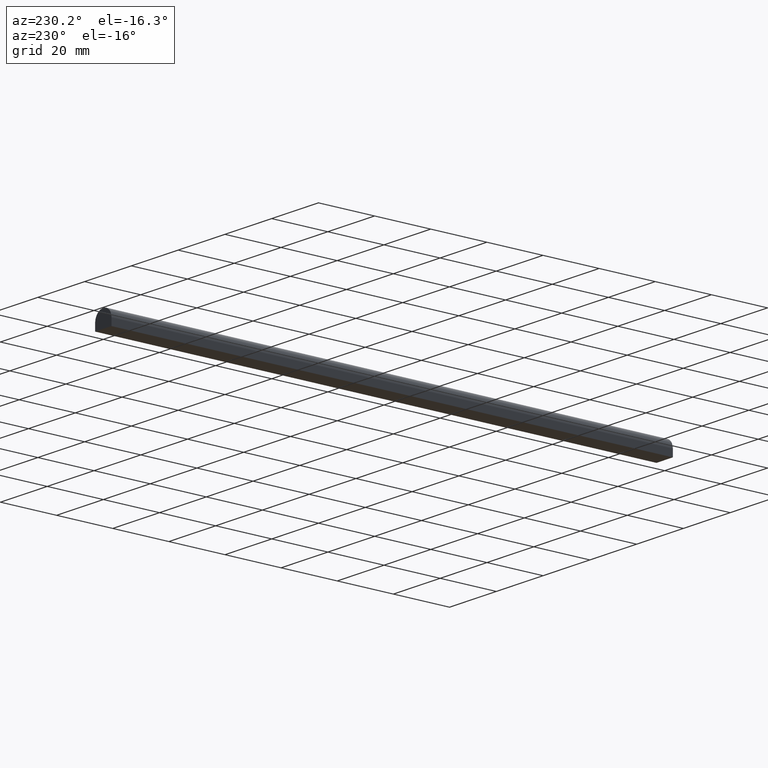
[diagram: clean part render]
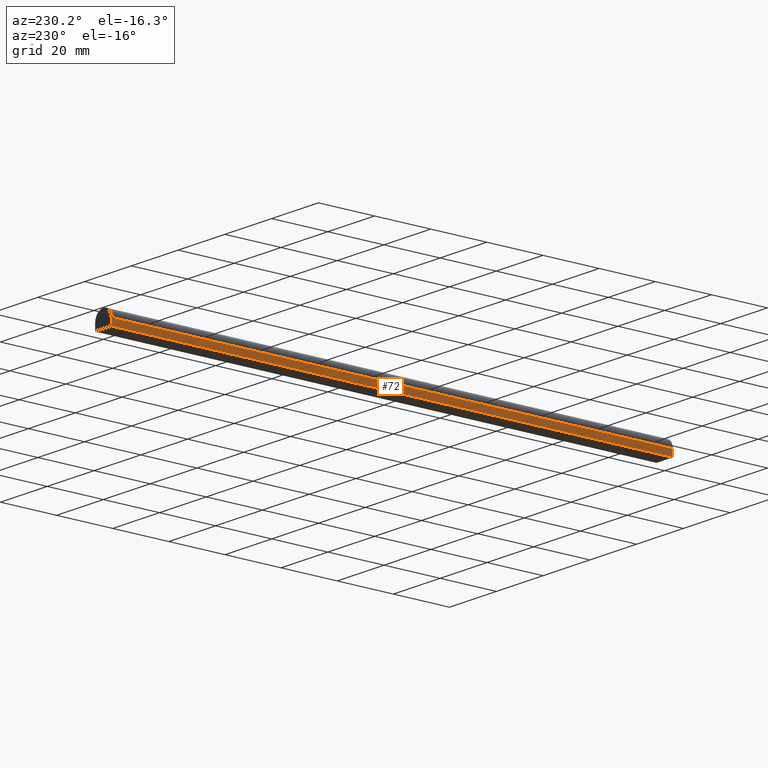
[diagram: same view with one face highlighted and labeled with its STEP entity id]
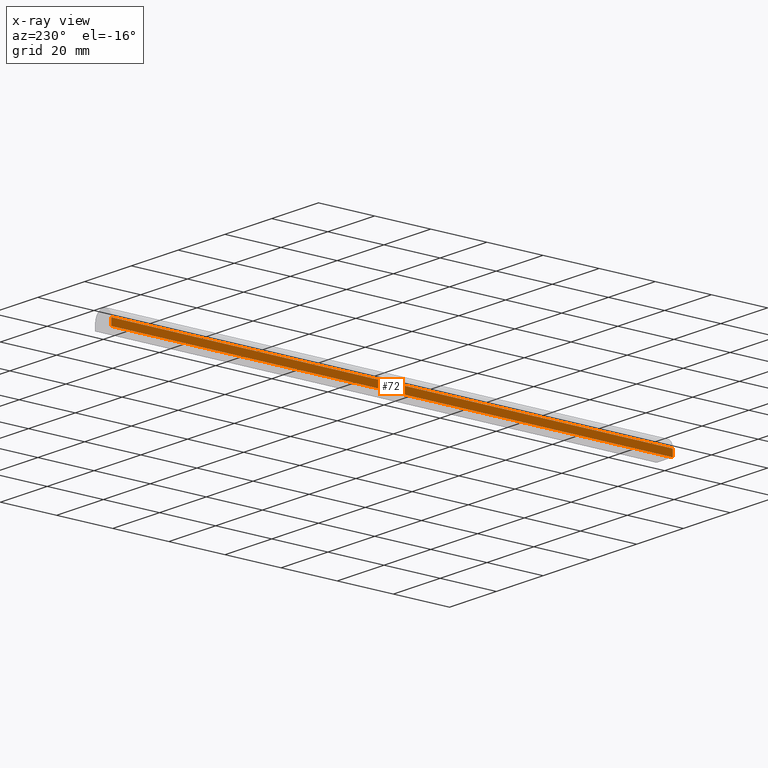
[diagram: x-ray of the same camera — body ghosted, the highlighted face saturated]
A machine part, auxiliary view. The second image highlights one B-rep face of the part: STEP entity #72.
The next image is the same camera in x-ray: the body ghosted, the highlighted face saturated — about 0% of this face is hidden behind the body in this view.
In plain terms, the highlighted planar face has unit normal (-1, 0, 0).
Its self-contained STEP definition (entity closure, byte-faithful):
#8 = PLANE ( 'NONE',  #75 ) ;
#10 = VERTEX_POINT ( 'NONE', #132 ) ;
#17 = DIRECTION ( 'NONE',  ( -1.000000000000000000, 0.0000000000000000000, 0.0000000000000000000 ) ) ;
#18 = ORIENTED_EDGE ( 'NONE', *, *, #174, .T. ) ;
#22 = DIRECTION ( 'NONE',  ( 0.0000000000000000000, -1.000000000000000000, 0.0000000000000000000 ) ) ;
#23 = VECTOR ( 'NONE', #171, 1000.000000000000000 ) ;
#30 = ORIENTED_EDGE ( 'NONE', *, *, #214, .F. ) ;
#34 = DIRECTION ( 'NONE',  ( -0.0000000000000000000, -0.0000000000000000000, -1.000000000000000000 ) ) ;
#37 = VERTEX_POINT ( 'NONE', #40 ) ;
#40 = CARTESIAN_POINT ( 'NONE',  ( -3.500000000000000000, 0.0000000000000000000, -3.000000000000000000 ) ) ;
#45 = DIRECTION ( 'NONE',  ( 0.0000000000000000000, 0.0000000000000000000, 1.000000000000000000 ) ) ;
#51 = VECTOR ( 'NONE', #22, 1000.000000000000000 ) ;
#52 = VECTOR ( 'NONE', #146, 1000.000000000000000 ) ;
#57 = CARTESIAN_POINT ( 'NONE',  ( -3.500000000000000000, 1000.000000000000000, -0.5000000000000000000 ) ) ;
#58 = LINE ( 'NONE', #166, #144 ) ;
#72 = ADVANCED_FACE ( 'NONE', ( #164 ), #8, .T. ) ;
#74 = EDGE_LOOP ( 'NONE', ( #30, #210, #18, #111 ) ) ;
#75 = AXIS2_PLACEMENT_3D ( 'NONE', #57, #17, #45 ) ;
#76 = CARTESIAN_POINT ( 'NONE',  ( -3.500000000000000000, 200.0000000000000000, -0.5000000000000000000 ) ) ;
#92 = EDGE_CURVE ( 'NONE', #117, #184, #217, .T. ) ;
#95 = CARTESIAN_POINT ( 'NONE',  ( -3.500000000000000000, 0.0000000000000000000, -0.5000000000000000000 ) ) ;
#105 = CARTESIAN_POINT ( 'NONE',  ( -3.500000000000000000, 1000.000000000000000, -0.5000000000000000000 ) ) ;
#111 = ORIENTED_EDGE ( 'NONE', *, *, #150, .T. ) ;
#117 = VERTEX_POINT ( 'NONE', #76 ) ;
#132 = CARTESIAN_POINT ( 'NONE',  ( -3.500000000000000000, 200.0000000000000000, -3.000000000000000000 ) ) ;
#144 = VECTOR ( 'NONE', #34, 1000.000000000000000 ) ;
#146 = DIRECTION ( 'NONE',  ( -0.0000000000000000000, -0.0000000000000000000, -1.000000000000000000 ) ) ;
#150 = EDGE_CURVE ( 'NONE', #10, #37, #190, .T. ) ;
#164 = FACE_OUTER_BOUND ( 'NONE', #74, .T. ) ;
#166 = CARTESIAN_POINT ( 'NONE',  ( -3.500000000000000000, 200.0000000000000000, 0.0000000000000000000 ) ) ;
#171 = DIRECTION ( 'NONE',  ( 0.0000000000000000000, -1.000000000000000000, 0.0000000000000000000 ) ) ;
#174 = EDGE_CURVE ( 'NONE', #117, #10, #58, .T. ) ;
#176 = CARTESIAN_POINT ( 'NONE',  ( -3.500000000000000000, 1000.000000000000000, -3.000000000000000000 ) ) ;
#184 = VERTEX_POINT ( 'NONE', #95 ) ;
#190 = LINE ( 'NONE', #176, #51 ) ;
#197 = LINE ( 'NONE', #219, #52 ) ;
#210 = ORIENTED_EDGE ( 'NONE', *, *, #92, .F. ) ;
#214 = EDGE_CURVE ( 'NONE', #184, #37, #197, .T. ) ;
#217 = LINE ( 'NONE', #105, #23 ) ;
#219 = CARTESIAN_POINT ( 'NONE',  ( -3.500000000000000000, 0.0000000000000000000, 0.0000000000000000000 ) ) ;